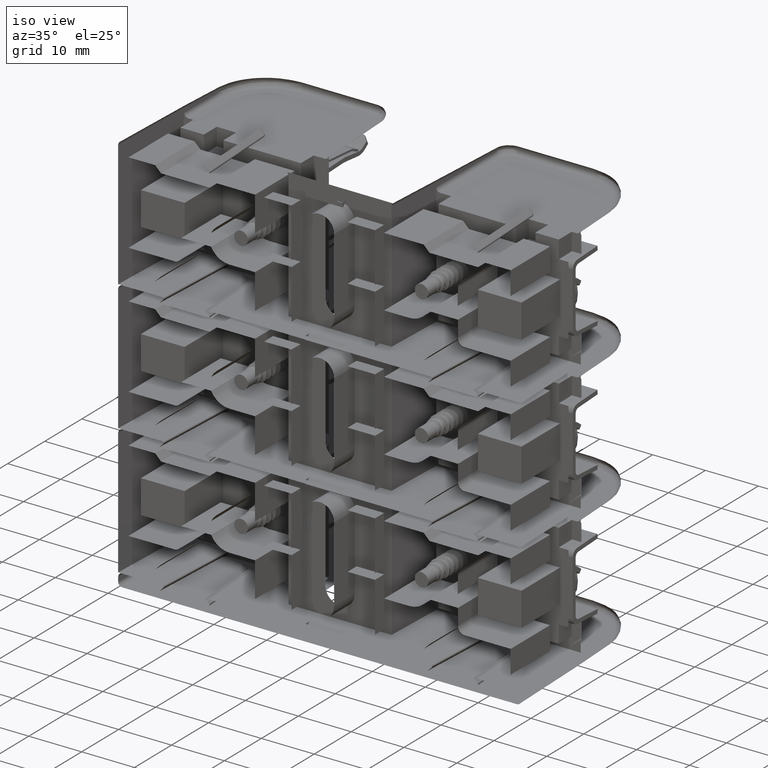
[diagram: clean part render]
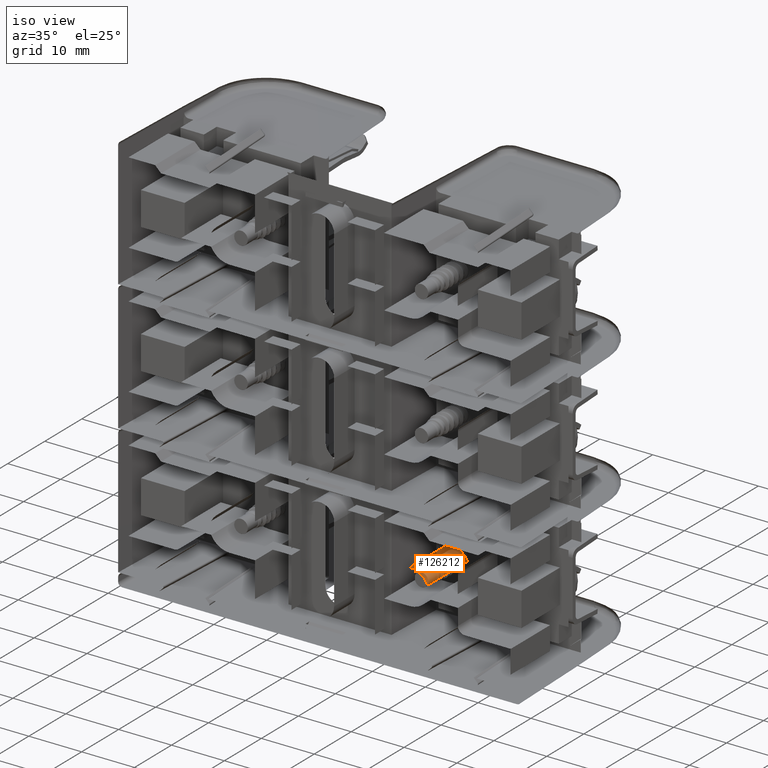
[diagram: same view with one face highlighted and labeled with its STEP entity id]
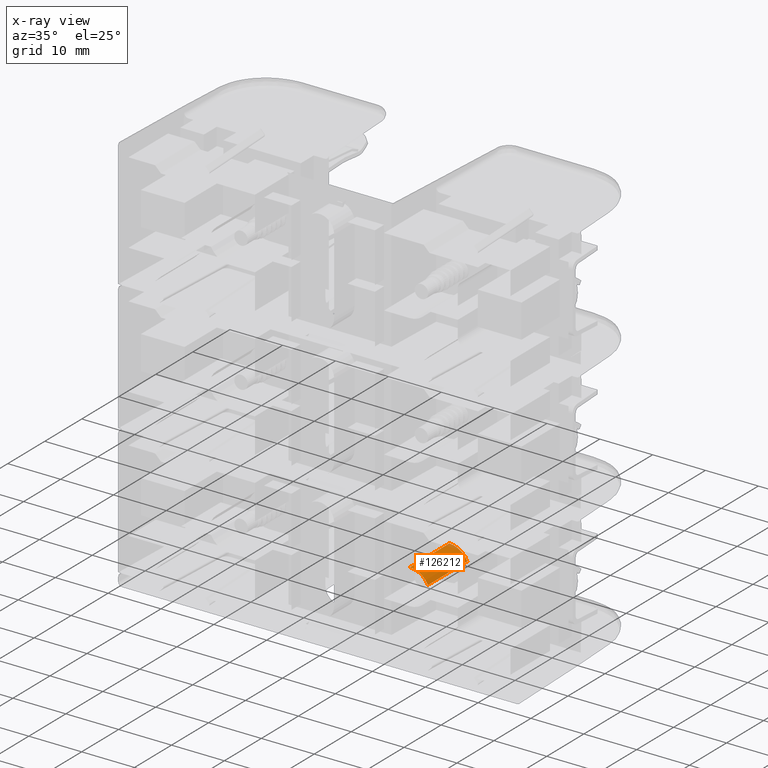
[diagram: x-ray of the same camera — body ghosted, the highlighted face saturated]
A machine part, iso view. The second image highlights one B-rep face of the part: STEP entity #126212.
The next image is the same camera in x-ray: the body ghosted, the highlighted face saturated — about 3% of this face is hidden behind the body in this view.
In plain terms, the highlighted cylindrical surface (edge-blend (fillet) strip) has radius 3.8354 mm, axis along (-0, -1, -0).
Its self-contained STEP definition (entity closure, byte-faithful):
#3991 = DIRECTION ( 'NONE',  ( -1.809170856731298800E-015, 0.0000000000000000000, -1.000000000000000000 ) ) ;
#14411 = CARTESIAN_POINT ( 'NONE',  ( 0.8073218385922986700, 0.4199999999999999800, -0.3905000000000001200 ) ) ;
#17251 = VERTEX_POINT ( 'NONE', #117328 ) ;
#24096 = VECTOR ( 'NONE', #123174, 39.37007874015748100 ) ;
#24477 = FACE_OUTER_BOUND ( 'NONE', #87269, .T. ) ;
#31167 = CARTESIAN_POINT ( 'NONE',  ( 0.8073218385922986700, 0.0000000000000000000, -0.3905000000000001200 ) ) ;
#34426 = LINE ( 'NONE', #87573, #86900 ) ;
#38368 = CYLINDRICAL_SURFACE ( 'NONE', #71881, 0.1510000000000001100 ) ;
#49331 = AXIS2_PLACEMENT_3D ( 'NONE', #117844, #58725, #127809 ) ;
#52183 = VERTEX_POINT ( 'NONE', #31167 ) ;
#53909 = ORIENTED_EDGE ( 'NONE', *, *, #70721, .F. ) ;
#56550 = LINE ( 'NONE', #14411, #24096 ) ;
#57429 = DIRECTION ( 'NONE',  ( 0.0000000000000000000, 0.0000000000000000000, -1.000000000000000000 ) ) ;
#58218 = EDGE_CURVE ( 'NONE', #17251, #126504, #34426, .T. ) ;
#58725 = DIRECTION ( 'NONE',  ( -0.0000000000000000000, -1.000000000000000000, -0.0000000000000000000 ) ) ;
#61058 = ORIENTED_EDGE ( 'NONE', *, *, #58218, .F. ) ;
#63247 = DIRECTION ( 'NONE',  ( 0.0000000000000000000, 1.000000000000000000, 0.0000000000000000000 ) ) ;
#63498 = VERTEX_POINT ( 'NONE', #88754 ) ;
#66991 = DIRECTION ( 'NONE',  ( -0.0000000000000000000, -1.000000000000000000, -0.0000000000000000000 ) ) ;
#70721 = EDGE_CURVE ( 'NONE', #63498, #17251, #87133, .T. ) ;
#71881 = AXIS2_PLACEMENT_3D ( 'NONE', #75971, #66991, #57429 ) ;
#73646 = EDGE_CURVE ( 'NONE', #52183, #63498, #56550, .T. ) ;
#75971 = CARTESIAN_POINT ( 'NONE',  ( 0.6720000000000003700, 0.4199999999999999800, -0.4575000000000001300 ) ) ;
#85141 = ORIENTED_EDGE ( 'NONE', *, *, #97527, .F. ) ;
#86039 = ORIENTED_EDGE ( 'NONE', *, *, #73646, .F. ) ;
#86731 = DIRECTION ( 'NONE',  ( -0.0000000000000000000, -1.000000000000000000, -0.0000000000000000000 ) ) ;
#86900 = VECTOR ( 'NONE', #86731, 39.37007874015748100 ) ;
#87133 = CIRCLE ( 'NONE', #49331, 0.1510000000000001100 ) ;
#87269 = EDGE_LOOP ( 'NONE', ( #53909, #86039, #85141, #61058 ) ) ;
#87573 = CARTESIAN_POINT ( 'NONE',  ( 0.6720000000000003700, 0.4199999999999999800, -0.3064999999999999900 ) ) ;
#88754 = CARTESIAN_POINT ( 'NONE',  ( 0.8073218385922986700, 0.4199999999999999800, -0.3905000000000001200 ) ) ;
#93607 = AXIS2_PLACEMENT_3D ( 'NONE', #122303, #63247, #3991 ) ;
#97080 = CIRCLE ( 'NONE', #93607, 0.1510000000000001100 ) ;
#97527 = EDGE_CURVE ( 'NONE', #126504, #52183, #97080, .T. ) ;
#110867 = CARTESIAN_POINT ( 'NONE',  ( 0.6720000000000003700, 0.0000000000000000000, -0.3065000000000000500 ) ) ;
#117328 = CARTESIAN_POINT ( 'NONE',  ( 0.6720000000000003700, 0.4199999999999999800, -0.3065000000000000500 ) ) ;
#117844 = CARTESIAN_POINT ( 'NONE',  ( 0.6720000000000003700, 0.4199999999999999800, -0.4575000000000001300 ) ) ;
#122303 = CARTESIAN_POINT ( 'NONE',  ( 0.6720000000000003700, 0.0000000000000000000, -0.4575000000000001300 ) ) ;
#123174 = DIRECTION ( 'NONE',  ( 0.0000000000000000000, 1.000000000000000000, 0.0000000000000000000 ) ) ;
#126212 = ADVANCED_FACE ( 'NONE', ( #24477 ), #38368, .F. ) ;
#126504 = VERTEX_POINT ( 'NONE', #110867 ) ;
#127809 = DIRECTION ( 'NONE',  ( 0.0000000000000000000, 0.0000000000000000000, -1.000000000000000000 ) ) ;